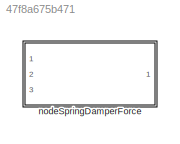
MODEL slx_47f8a675b471
KIND library
CONFIG AbsTol = auto
CONFIG EnableMultiTasking = off
CONFIG FixedStep = auto
CONFIG MaxStep = auto
CONFIG MinStep = auto
CONFIG RelTol = 1e-3
CONFIG SampleTimeConstraint = Unconstrained
CONFIG SolverName = VariableStepAuto
CONFIG StartTime = 0.0
CONFIG StopTime = 10.0
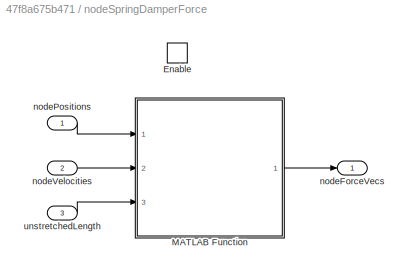
BLOCK [SubSystem] nodeSpringDamperForce
  MinAlgLoopOccurrences = on
  Ports = [3, 1, 1]
  RequestExecContextInheritance = off
BLOCK [EnablePort] nodeSpringDamperForce/Enable
  Ports = []
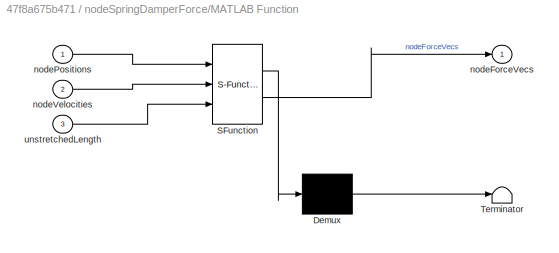
BLOCK [SubSystem] nodeSpringDamperForce/MATLAB Function
  ErrorFcn = Stateflow.Translate.translate
  PermitHierarchicalResolution = ExplicitOnly
  Ports = [3, 1]
  RequestExecContextInheritance = off
  SFBlockType = MATLAB Function
  TreatAsAtomicUnit = on
BLOCK [Demux] nodeSpringDamperForce/MATLAB Function/ Demux 
  Outputs = 1
  Ports = [1, 1]
BLOCK [S-Function] nodeSpringDamperForce/MATLAB Function/ SFunction 
  EnableBusSupport = off
  FunctionName = sf_sfun
  Parameters = diameter,mass,youngsMod,zeta
  PortCounts = [3 2]
  Ports = [3, 2]
  SFcnIsStateOwnerBlock = off
  SFunctionDeploymentMode = off
  Tag = Stateflow S-Function 2
BLOCK [Terminator] nodeSpringDamperForce/MATLAB Function/ Terminator 
BLOCK [Outport] nodeSpringDamperForce/MATLAB Function/nodeForceVecs
  VectorParamsAs1DForOutWhenUnconnected = off
BLOCK [Inport] nodeSpringDamperForce/MATLAB Function/nodePositions
BLOCK [Inport] nodeSpringDamperForce/MATLAB Function/nodeVelocities
  Port = 2
BLOCK [Inport] nodeSpringDamperForce/MATLAB Function/unstretchedLength
  Port = 3
BLOCK [Outport] nodeSpringDamperForce/nodeForceVecs 
  VectorParamsAs1DForOutWhenUnconnected = off
BLOCK [Inport] nodeSpringDamperForce/nodePositions
BLOCK [Inport] nodeSpringDamperForce/nodeVelocities
  Port = 2
BLOCK [Inport] nodeSpringDamperForce/unstretchedLength
  Port = 3
LINE nodeSpringDamperForce/MATLAB Function:1 -> nodeSpringDamperForce/nodeForceVecs :1
LINE nodeSpringDamperForce/nodePositions:1 -> nodeSpringDamperForce/MATLAB Function:1
LINE nodeSpringDamperForce/nodeVelocities:1 -> nodeSpringDamperForce/MATLAB Function:2
LINE nodeSpringDamperForce/unstretchedLength:1 -> nodeSpringDamperForce/MATLAB Function:3
CHART nodeSpringDamperForce/MATLAB Function states=1 transitions=1
  STATE_LABEL 'eML_blk_kernel()'
  STATE_LABEL 'SCRIPT:\nfunction nodeForceVecs = fcn(nodePositions,nodeVelocities,unstretchedLength,mass, zeta, diameter, youngsMod)\n\nnodeForceVecs = nodeSpringDamperForce(nodePositions,nodeVelocities,unstretchedLength,mass,zeta,diameter,youngsMod);\n\nend\n'
CHART  states=0 transitions=0
